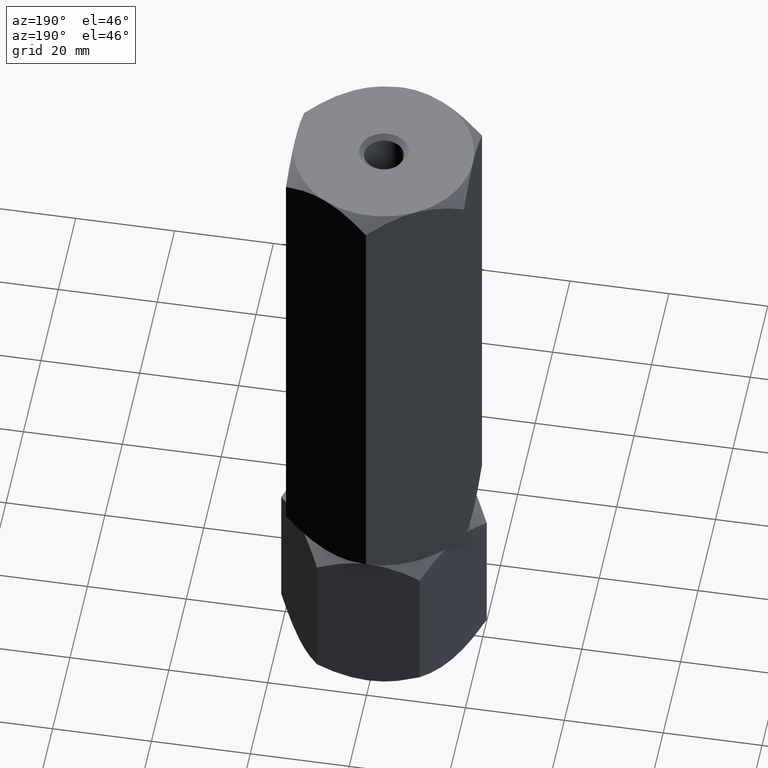
[diagram: clean part render]
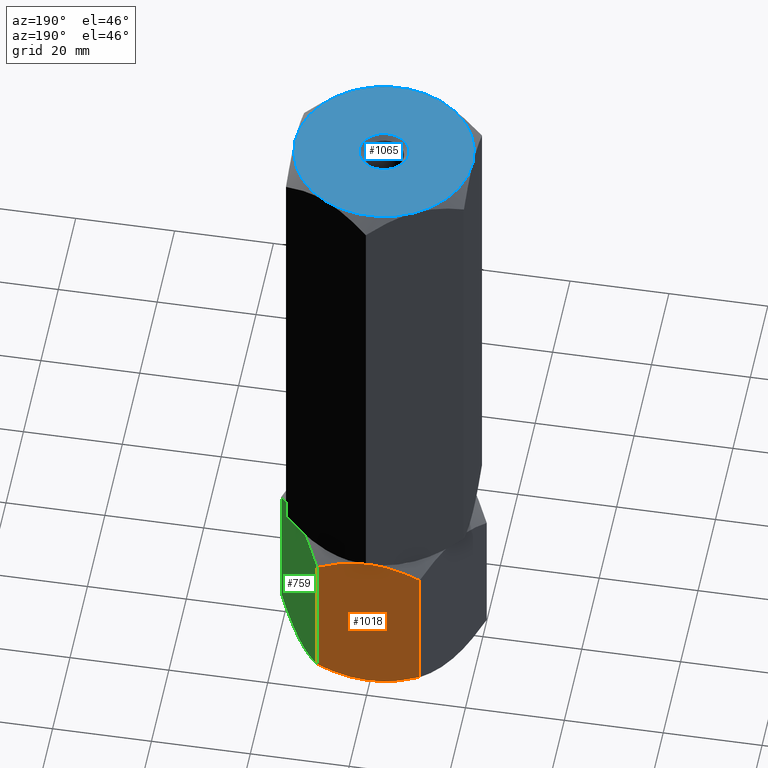
[diagram: same view with three faces highlighted in distinct colors, each labeled with its STEP entity id]
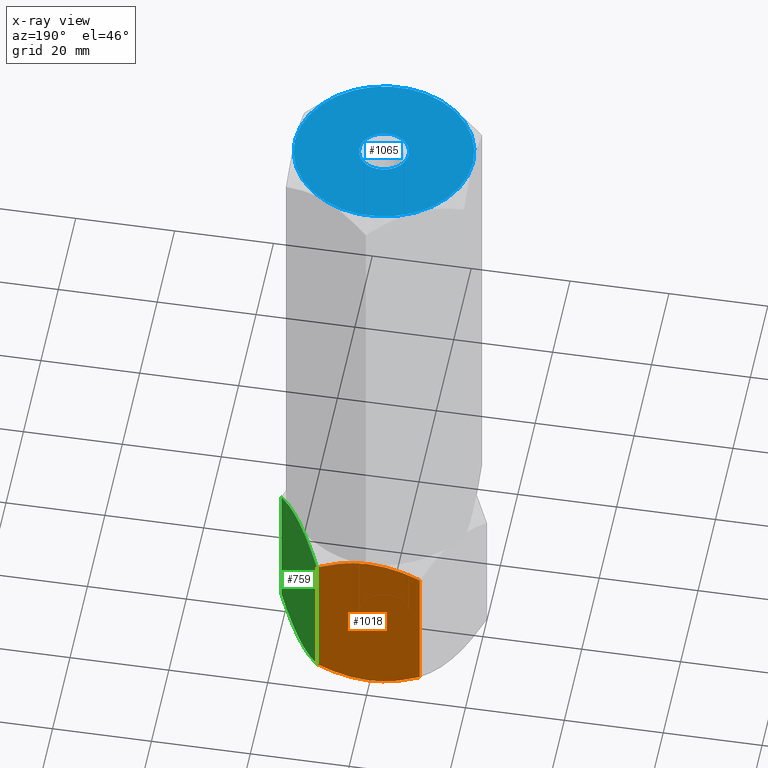
[diagram: x-ray of the same camera — body ghosted, the three highlighted faces saturated]
A machine part, auxiliary view with three faces highlighted in distinct colors.
The next image is the same camera in x-ray (body ghosted, the three faces saturated) — at least one of them is partly hidden behind the body in this view.
Their STEP definitions:

[orange] entity #1018 — the highlighted planar face has unit normal (0, -1, 0).
#123 = CARTESIAN_POINT ( 'NONE',  ( -3.582737890600629527, 18.00000000000000000, 32.98534607053208845 ) ) ;
#152 = CARTESIAN_POINT ( 'NONE',  ( -6.223364658448756970, 18.00000000000000000, 1.027362707364319450 ) ) ;
#158 = EDGE_CURVE ( 'NONE', #1009, #1363, #1862, .T. ) ;
#163 = CARTESIAN_POINT ( 'NONE',  ( 0.000000000000000000, 18.00000000000000000, 0.000000000000000000 ) ) ;
#203 = LINE ( 'NONE', #1028, #266 ) ;
#204 = CARTESIAN_POINT ( 'NONE',  ( 10.39230484541325872, 18.00000000000000000, 30.54872364250678274 ) ) ;
#242 = ORIENTED_EDGE ( 'NONE', *, *, #1623, .T. ) ;
#266 = VECTOR ( 'NONE', #546, 1000.000000000000000 ) ;
#278 = CARTESIAN_POINT ( 'NONE',  ( 0.9002413815126234509, 18.00000000000000355, 33.31647646091370518 ) ) ;
#301 = ORIENTED_EDGE ( 'NONE', *, *, #1191, .F. ) ;
#324 = CARTESIAN_POINT ( 'NONE',  ( 0.000000000000000000, 18.00000000000000000, 33.33333333333330017 ) ) ;
#418 = CARTESIAN_POINT ( 'NONE',  ( 3.137971139320011371, 17.99999999999999289, 0.2661507737096521775 ) ) ;
#431 = CARTESIAN_POINT ( 'NONE',  ( 1.804565745311149216, 17.99999999999999645, 33.24872234649103575 ) ) ;
#441 = CARTESIAN_POINT ( 'NONE',  ( -9.584903723681016174, 18.00000000000000355, 2.380909129960397497 ) ) ;
#464 = CARTESIAN_POINT ( 'NONE',  ( -0.4494445606874136190, 18.00000000000000355, 7.199780051661526689E-18 ) ) ;
#466 = VERTEX_POINT ( 'NONE', #663 ) ;
#546 = DIRECTION ( 'NONE',  ( -0.000000000000000000, -0.000000000000000000, -1.000000000000000000 ) ) ;
#549 = CARTESIAN_POINT ( 'NONE',  ( 10.39230484541325872, 18.00000000000000000, 33.33333333333330017 ) ) ;
#574 = CARTESIAN_POINT ( 'NONE',  ( 7.075106353536198434, 17.99999999999999289, 32.00806985700393170 ) ) ;
#586 = CARTESIAN_POINT ( 'NONE',  ( -3.609079520572075594, 17.99999999999999289, 0.3366946526511033211 ) ) ;
#608 = CARTESIAN_POINT ( 'NONE',  ( 4.469866588357239934, 18.00000000000000711, 0.5416378219639089719 ) ) ;
#612 = CARTESIAN_POINT ( 'NONE',  ( 8.755178905241953302, 18.00000000000000000, 31.33178748861184459 ) ) ;
#620 = CARTESIAN_POINT ( 'NONE',  ( 0.9026633666619912066, 18.00000000000000355, -1.524659305057740610E-17 ) ) ;
#658 = CARTESIAN_POINT ( 'NONE',  ( -10.39230484541326582, 18.00000000000000000, 30.54872364250677919 ) ) ;
#663 = CARTESIAN_POINT ( 'NONE',  ( -10.39230484541326582, 18.00000000000000000, 2.784609690826517436 ) ) ;
#760 = CARTESIAN_POINT ( 'NONE',  ( -1.804565745311151437, 18.00000000000000355, 0.08461098684225840105 ) ) ;
#779 = CARTESIAN_POINT ( 'NONE',  ( 1.799853003699884546, 18.00000000000000000, 0.06823388440832033053 ) ) ;
#792 = CARTESIAN_POINT ( 'NONE',  ( 0.000000000000000000, 18.00000000000000000, 33.33333333333330017 ) ) ;
#795 = EDGE_CURVE ( 'NONE', #964, #1880, #1221, .T. ) ;
#920 = CARTESIAN_POINT ( 'NONE',  ( 2.259904121284829426, 18.00000000000000711, 33.19747394958513098 ) ) ;
#922 = CARTESIAN_POINT ( 'NONE',  ( -1.799853003699874110, 18.00000000000000355, 33.26509944892498538 ) ) ;
#938 = CARTESIAN_POINT ( 'NONE',  ( 3.582737890600643738, 18.00000000000000000, 0.3479872628012178337 ) ) ;
#943 = CARTESIAN_POINT ( 'NONE',  ( 3.609079520572076483, 18.00000000000000355, 32.99663868068220296 ) ) ;
#946 = CARTESIAN_POINT ( 'NONE',  ( -10.39230484541326582, 18.00000000000000000, 2.784609690826517436 ) ) ;
#964 = VERTEX_POINT ( 'NONE', #204 ) ;
#976 = CARTESIAN_POINT ( 'NONE',  ( 10.39230484541325872, 18.00000000000000000, 2.784609690826514328 ) ) ;
#985 = CARTESIAN_POINT ( 'NONE',  ( -8.776755605963906248, 18.00000000000000355, 31.35649826223145453 ) ) ;
#1009 = VERTEX_POINT ( 'NONE', #1256 ) ;
#1018 = ADVANCED_FACE ( 'NONE', ( #1871 ), #2013, .F. ) ;
#1025 = ORIENTED_EDGE ( 'NONE', *, *, #1255, .F. ) ;
#1028 = CARTESIAN_POINT ( 'NONE',  ( -10.39230484541326582, 18.00000000000000000, 33.33333333333330017 ) ) ;
#1060 = CARTESIAN_POINT ( 'NONE',  ( 4.913571642337147161, 18.00000000000000000, 0.6538437536460134369 ) ) ;
#1061 = DIRECTION ( 'NONE',  ( 0.000000000000000000, -0.000000000000000000, -1.000000000000000000 ) ) ;
#1084 = DIRECTION ( 'NONE',  ( 0.000000000000000000, -1.000000000000000000, 0.000000000000000000 ) ) ;
#1091 = CARTESIAN_POINT ( 'NONE',  ( -4.490362039994832521, 18.00000000000000000, 0.5330411745022592962 ) ) ;
#1114 = CARTESIAN_POINT ( 'NONE',  ( -8.755178905241962184, 17.99999999999999645, 2.001545844721461354 ) ) ;
#1191 = EDGE_CURVE ( 'NONE', #466, #1009, #1597, .T. ) ;
#1220 = CARTESIAN_POINT ( 'NONE',  ( 10.39230484541325872, 18.00000000000000000, 30.54872364250678274 ) ) ;
#1221 = B_SPLINE_CURVE_WITH_KNOTS ( 'NONE', 3,
 ( #1220, #2016, #612, #574, #1245, #1426, #943, #920, #431, #278, #1996, #2006 ),
 .UNSPECIFIED., .F., .F.,
 ( 4, 2, 2, 2, 2, 4 ),
 ( 0.05087049060338693501, 0.05355718337380664662, 0.05624387614422635823, 0.05893056891464606983, 0.06027391529985592911, 0.06161726168506578838 ),
 .UNSPECIFIED. ) ;
#1245 = CARTESIAN_POINT ( 'NONE',  ( 6.223364658448745423, 18.00000000000000355, 32.30597062596897473 ) ) ;
#1254 = CARTESIAN_POINT ( 'NONE',  ( 10.39230484541325872, 18.00000000000000000, 2.784609690826514328 ) ) ;
#1255 = EDGE_CURVE ( 'NONE', #1880, #1537, #1524, .T. ) ;
#1256 = CARTESIAN_POINT ( 'NONE',  ( 0.000000000000000000, 18.00000000000000000, 0.000000000000000000 ) ) ;
#1289 = CARTESIAN_POINT ( 'NONE',  ( -2.259904121284828538, 18.00000000000000000, 0.1358593837481692213 ) ) ;
#1363 = VERTEX_POINT ( 'NONE', #976 ) ;
#1394 = CARTESIAN_POINT ( 'NONE',  ( 10.39230484541325872, 18.00000000000000000, 33.33333333333330017 ) ) ;
#1407 = VECTOR ( 'NONE', #1978, 1000.000000000000000 ) ;
#1409 = CARTESIAN_POINT ( 'NONE',  ( -4.469866588357223058, 18.00000000000000355, 32.79169551136941152 ) ) ;
#1411 = ORIENTED_EDGE ( 'NONE', *, *, #158, .F. ) ;
#1420 = ORIENTED_EDGE ( 'NONE', *, *, #2034, .F. ) ;
#1426 = CARTESIAN_POINT ( 'NONE',  ( 4.490362039994821863, 18.00000000000000355, 32.80029215883104143 ) ) ;
#1501 = AXIS2_PLACEMENT_3D ( 'NONE', #1394, #1084, #1061 ) ;
#1524 = B_SPLINE_CURVE_WITH_KNOTS ( 'NONE', 3,
 ( #792, #1868, #922, #1560, #123, #1409, #2021, #2032, #985, #1613 ),
 .UNSPECIFIED., .F., .F.,
 ( 4, 2, 2, 2, 4 ),
 ( 0.06161726168506578838, 0.06431523531013785822, 0.06566422212267389313, 0.06701320893520992805, 0.07240915618535409548 ),
 .UNSPECIFIED. ) ;
#1537 = VERTEX_POINT ( 'NONE', #658 ) ;
#1553 = CARTESIAN_POINT ( 'NONE',  ( 8.776755605963906248, 17.99999999999999645, 1.976835071101844088 ) ) ;
#1560 = CARTESIAN_POINT ( 'NONE',  ( -3.137971139319999381, 18.00000000000000000, 33.06718255962364594 ) ) ;
#1563 = ORIENTED_EDGE ( 'NONE', *, *, #795, .F. ) ;
#1597 = B_SPLINE_CURVE_WITH_KNOTS ( 'NONE', 3,
 ( #946, #441, #1114, #1751, #152, #1091, #586, #1289, #760, #1893, #464, #163 ),
 .UNSPECIFIED., .F., .F.,
 ( 4, 2, 2, 2, 2, 4 ),
 ( 0.05087049060338693501, 0.05355718337380665356, 0.05624387614422636517, 0.05893056891464608371, 0.06027391529985593605, 0.06161726168506579532 ),
 .UNSPECIFIED. ) ;
#1613 = CARTESIAN_POINT ( 'NONE',  ( -10.39230484541326582, 18.00000000000000000, 30.54872364250677919 ) ) ;
#1623 = EDGE_CURVE ( 'NONE', #964, #1363, #1828, .T. ) ;
#1751 = CARTESIAN_POINT ( 'NONE',  ( -7.075106353536209980, 18.00000000000000000, 1.325263476329348267 ) ) ;
#1828 = LINE ( 'NONE', #549, #1407 ) ;
#1841 = CARTESIAN_POINT ( 'NONE',  ( 0.000000000000000000, 18.00000000000000000, 0.000000000000000000 ) ) ;
#1862 = B_SPLINE_CURVE_WITH_KNOTS ( 'NONE', 3,
 ( #1841, #620, #779, #418, #938, #608, #1060, #2037, #1553, #1254 ),
 .UNSPECIFIED., .F., .F.,
 ( 4, 2, 2, 2, 4 ),
 ( 0.06161726168506579532, 0.06431523531013787209, 0.06566422212267390701, 0.06701320893520994193, 0.07240915618535409548 ),
 .UNSPECIFIED. ) ;
#1868 = CARTESIAN_POINT ( 'NONE',  ( -0.9026633666619896523, 18.00000000000000711, 33.33333333333330728 ) ) ;
#1871 = FACE_OUTER_BOUND ( 'NONE', #2010, .T. ) ;
#1880 = VERTEX_POINT ( 'NONE', #324 ) ;
#1893 = CARTESIAN_POINT ( 'NONE',  ( -0.9002413815126235619, 18.00000000000000000, 0.01685687241959241828 ) ) ;
#1978 = DIRECTION ( 'NONE',  ( -0.000000000000000000, -0.000000000000000000, -1.000000000000000000 ) ) ;
#1996 = CARTESIAN_POINT ( 'NONE',  ( 0.4494445606874132304, 18.00000000000000000, 33.33333333333330017 ) ) ;
#2006 = CARTESIAN_POINT ( 'NONE',  ( 0.000000000000000000, 18.00000000000000000, 33.33333333333330017 ) ) ;
#2010 = EDGE_LOOP ( 'NONE', ( #1563, #242, #1411, #301, #1420, #1025 ) ) ;
#2013 = PLANE ( 'NONE',  #1501 ) ;
#2016 = CARTESIAN_POINT ( 'NONE',  ( 9.584903723681012622, 18.00000000000000000, 30.95242420337290312 ) ) ;
#2021 = CARTESIAN_POINT ( 'NONE',  ( -4.913571642337144496, 18.00000000000000355, 32.67948957968728507 ) ) ;
#2032 = CARTESIAN_POINT ( 'NONE',  ( -7.110040999954855501, 17.99999999999999645, 32.05339839988549500 ) ) ;
#2034 = EDGE_CURVE ( 'NONE', #1537, #466, #203, .T. ) ;
#2037 = CARTESIAN_POINT ( 'NONE',  ( 7.110040999954858165, 18.00000000000000711, 1.279934933447799628 ) ) ;

[blue] entity #1065 — the highlighted planar face has unit normal (0, 0, 1).
#22 = DIRECTION ( 'NONE',  ( 1.000000000000000000, 0.000000000000000000, 0.000000000000000000 ) ) ;
#32 = CIRCLE ( 'NONE', #801, 18.00000000000000000 ) ;
#80 = ORIENTED_EDGE ( 'NONE', *, *, #1771, .T. ) ;
#107 = CARTESIAN_POINT ( 'NONE',  ( 8.999999999999994671, -15.58845726811989785, 133.3333333333333144 ) ) ;
#114 = CARTESIAN_POINT ( 'NONE',  ( 0.000000000000000000, 0.000000000000000000, 133.3333333333333144 ) ) ;
#133 = ORIENTED_EDGE ( 'NONE', *, *, #1856, .T. ) ;
#148 = DIRECTION ( 'NONE',  ( 1.000000000000000000, 0.000000000000000000, -0.000000000000000000 ) ) ;
#162 = VERTEX_POINT ( 'NONE', #445 ) ;
#188 = CIRCLE ( 'NONE', #263, 4.999999999999990230 ) ;
#224 = DIRECTION ( 'NONE',  ( 1.000000000000000000, 0.000000000000000000, 0.000000000000000000 ) ) ;
#239 = CARTESIAN_POINT ( 'NONE',  ( 4.999999999999990230, 0.000000000000000000, 133.3333333333333144 ) ) ;
#246 = CARTESIAN_POINT ( 'NONE',  ( 18.00000000000000000, 3.004629197474316879E-15, 133.3333333333333144 ) ) ;
#263 = AXIS2_PLACEMENT_3D ( 'NONE', #1062, #1863, #265 ) ;
#265 = DIRECTION ( 'NONE',  ( 1.000000000000000000, 0.000000000000000000, 0.000000000000000000 ) ) ;
#275 = EDGE_CURVE ( 'NONE', #600, #649, #1700, .T. ) ;
#372 = CARTESIAN_POINT ( 'NONE',  ( 0.000000000000000000, 0.000000000000000000, 133.3333333333333144 ) ) ;
#395 = CARTESIAN_POINT ( 'NONE',  ( 0.000000000000000000, 0.000000000000000000, 133.3333333333333144 ) ) ;
#445 = CARTESIAN_POINT ( 'NONE',  ( -9.000000000000003553, -15.58845726811989074, 133.3333333333333144 ) ) ;
#461 = AXIS2_PLACEMENT_3D ( 'NONE', #1202, #1039, #902 ) ;
#526 = CIRCLE ( 'NONE', #461, 18.00000000000000000 ) ;
#554 = CIRCLE ( 'NONE', #1671, 4.999999999999990230 ) ;
#577 = EDGE_LOOP ( 'NONE', ( #1721, #1942, #1901, #1213, #1561, #1346 ) ) ;
#581 = CARTESIAN_POINT ( 'NONE',  ( 9.000000000000000000, 15.58845726811989252, 133.3333333333333144 ) ) ;
#584 = EDGE_CURVE ( 'NONE', #847, #162, #907, .T. ) ;
#600 = VERTEX_POINT ( 'NONE', #107 ) ;
#649 = VERTEX_POINT ( 'NONE', #246 ) ;
#651 = CARTESIAN_POINT ( 'NONE',  ( -4.999999999999990230, 6.123233995736754449E-16, 133.3333333333333144 ) ) ;
#655 = FACE_BOUND ( 'NONE', #851, .T. ) ;
#660 = EDGE_CURVE ( 'NONE', #997, #925, #526, .T. ) ;
#801 = AXIS2_PLACEMENT_3D ( 'NONE', #372, #878, #1502 ) ;
#818 = DIRECTION ( 'NONE',  ( 0.000000000000000000, 0.000000000000000000, 1.000000000000000000 ) ) ;
#847 = VERTEX_POINT ( 'NONE', #1100 ) ;
#851 = EDGE_LOOP ( 'NONE', ( #133, #80 ) ) ;
#878 = DIRECTION ( 'NONE',  ( 0.000000000000000000, 0.000000000000000000, 1.000000000000000000 ) ) ;
#902 = DIRECTION ( 'NONE',  ( 1.000000000000000000, 0.000000000000000000, 0.000000000000000000 ) ) ;
#907 = CIRCLE ( 'NONE', #1134, 18.00000000000000000 ) ;
#925 = VERTEX_POINT ( 'NONE', #1030 ) ;
#950 = CARTESIAN_POINT ( 'NONE',  ( 0.000000000000000000, 0.000000000000000000, 133.3333333333333144 ) ) ;
#968 = DIRECTION ( 'NONE',  ( 0.000000000000000000, 0.000000000000000000, 1.000000000000000000 ) ) ;
#997 = VERTEX_POINT ( 'NONE', #581 ) ;
#1010 = DIRECTION ( 'NONE',  ( 0.000000000000000000, 0.000000000000000000, 1.000000000000000000 ) ) ;
#1030 = CARTESIAN_POINT ( 'NONE',  ( -8.999999999999998224, 15.58845726811990318, 133.3333333333333144 ) ) ;
#1039 = DIRECTION ( 'NONE',  ( 0.000000000000000000, 0.000000000000000000, 1.000000000000000000 ) ) ;
#1062 = CARTESIAN_POINT ( 'NONE',  ( 0.000000000000000000, 0.000000000000000000, 133.3333333333333144 ) ) ;
#1065 = ADVANCED_FACE ( 'NONE', ( #655, #1499 ), #1129, .T. ) ;
#1094 = CIRCLE ( 'NONE', #1699, 18.00000000000000000 ) ;
#1100 = CARTESIAN_POINT ( 'NONE',  ( -18.00000000000000000, 0.000000000000000000, 133.3333333333333144 ) ) ;
#1109 = DIRECTION ( 'NONE',  ( 1.000000000000000000, 0.000000000000000000, 0.000000000000000000 ) ) ;
#1128 = AXIS2_PLACEMENT_3D ( 'NONE', #395, #1010, #224 ) ;
#1129 = PLANE ( 'NONE',  #1540 ) ;
#1134 = AXIS2_PLACEMENT_3D ( 'NONE', #1616, #818, #22 ) ;
#1137 = DIRECTION ( 'NONE',  ( 0.000000000000000000, 0.000000000000000000, 1.000000000000000000 ) ) ;
#1151 = DIRECTION ( 'NONE',  ( -0.000000000000000000, -0.000000000000000000, -1.000000000000000000 ) ) ;
#1202 = CARTESIAN_POINT ( 'NONE',  ( 0.000000000000000000, 0.000000000000000000, 133.3333333333333144 ) ) ;
#1213 = ORIENTED_EDGE ( 'NONE', *, *, #1284, .T. ) ;
#1266 = VERTEX_POINT ( 'NONE', #651 ) ;
#1276 = CIRCLE ( 'NONE', #1405, 18.00000000000000000 ) ;
#1284 = EDGE_CURVE ( 'NONE', #925, #847, #1276, .T. ) ;
#1346 = ORIENTED_EDGE ( 'NONE', *, *, #1970, .T. ) ;
#1405 = AXIS2_PLACEMENT_3D ( 'NONE', #1624, #1137, #1774 ) ;
#1449 = EDGE_CURVE ( 'NONE', #649, #997, #1094, .T. ) ;
#1499 = FACE_OUTER_BOUND ( 'NONE', #577, .T. ) ;
#1502 = DIRECTION ( 'NONE',  ( 1.000000000000000000, 0.000000000000000000, 0.000000000000000000 ) ) ;
#1540 = AXIS2_PLACEMENT_3D ( 'NONE', #950, #968, #148 ) ;
#1561 = ORIENTED_EDGE ( 'NONE', *, *, #584, .T. ) ;
#1616 = CARTESIAN_POINT ( 'NONE',  ( 0.000000000000000000, 0.000000000000000000, 133.3333333333333144 ) ) ;
#1624 = CARTESIAN_POINT ( 'NONE',  ( 0.000000000000000000, 0.000000000000000000, 133.3333333333333144 ) ) ;
#1671 = AXIS2_PLACEMENT_3D ( 'NONE', #1754, #1151, #1109 ) ;
#1699 = AXIS2_PLACEMENT_3D ( 'NONE', #114, #2028, #1718 ) ;
#1700 = CIRCLE ( 'NONE', #1128, 18.00000000000000000 ) ;
#1718 = DIRECTION ( 'NONE',  ( 1.000000000000000000, 0.000000000000000000, 0.000000000000000000 ) ) ;
#1721 = ORIENTED_EDGE ( 'NONE', *, *, #275, .T. ) ;
#1754 = CARTESIAN_POINT ( 'NONE',  ( 0.000000000000000000, 0.000000000000000000, 133.3333333333333144 ) ) ;
#1771 = EDGE_CURVE ( 'NONE', #1266, #1956, #188, .T. ) ;
#1774 = DIRECTION ( 'NONE',  ( 1.000000000000000000, 0.000000000000000000, 0.000000000000000000 ) ) ;
#1856 = EDGE_CURVE ( 'NONE', #1956, #1266, #554, .T. ) ;
#1863 = DIRECTION ( 'NONE',  ( -0.000000000000000000, -0.000000000000000000, -1.000000000000000000 ) ) ;
#1901 = ORIENTED_EDGE ( 'NONE', *, *, #660, .T. ) ;
#1942 = ORIENTED_EDGE ( 'NONE', *, *, #1449, .T. ) ;
#1956 = VERTEX_POINT ( 'NONE', #239 ) ;
#1970 = EDGE_CURVE ( 'NONE', #162, #600, #32, .T. ) ;
#2028 = DIRECTION ( 'NONE',  ( 0.000000000000000000, 0.000000000000000000, 1.000000000000000000 ) ) ;

[green] entity #759 — the highlighted planar face has unit normal (-0.866, -0.5, 0).
#18 = CARTESIAN_POINT ( 'NONE',  ( 12.04041001437222214, 15.14539811114618928, 1.277383077889868046 ) ) ;
#41 = CARTESIAN_POINT ( 'NONE',  ( 15.13208409062669091, 9.790461530629878339, 0.01733285647408732560 ) ) ;
#96 = ORIENTED_EDGE ( 'NONE', *, *, #2008, .T. ) ;
#131 = CARTESIAN_POINT ( 'NONE',  ( 15.58845726811989252, 9.000000000000003553, 33.33333333333330017 ) ) ;
#194 = CARTESIAN_POINT ( 'NONE',  ( 15.58845726811989252, 9.000000000000003553, 33.33333333333330017 ) ) ;
#201 = VERTEX_POINT ( 'NONE', #194 ) ;
#204 = CARTESIAN_POINT ( 'NONE',  ( 10.39230484541325872, 18.00000000000000000, 30.54872364250678274 ) ) ;
#207 = DIRECTION ( 'NONE',  ( -0.8660254037844385966, -0.5000000000000003331, 0.000000000000000000 ) ) ;
#287 = CARTESIAN_POINT ( 'NONE',  ( 13.79618737047369947, 12.10430252359948256, 33.05693742621171083 ) ) ;
#312 = ORIENTED_EDGE ( 'NONE', *, *, #1446, .F. ) ;
#354 = CARTESIAN_POINT ( 'NONE',  ( 14.67378923359657605, 10.58425150785354774, 0.08694689011815222301 ) ) ;
#364 = PLANE ( 'NONE',  #736 ) ;
#374 = CARTESIAN_POINT ( 'NONE',  ( 20.78460969082652809, 2.339913672068599110E-16, 30.54872364250677919 ) ) ;
#402 = CARTESIAN_POINT ( 'NONE',  ( 20.78460969082652809, 0.000000000000000000, 33.33333333333330017 ) ) ;
#437 = CARTESIAN_POINT ( 'NONE',  ( 19.96977770663490048, 1.411330396252048258, 31.36355562669839614 ) ) ;
#456 = CARTESIAN_POINT ( 'NONE',  ( 15.58845726811989252, 9.000000000000003553, 33.33333333333330017 ) ) ;
#507 = CARTESIAN_POINT ( 'NONE',  ( 10.39230484541325872, 18.00000000000000000, 2.784609690826514328 ) ) ;
#538 = DIRECTION ( 'NONE',  ( -0.000000000000000000, -0.000000000000000000, -1.000000000000000000 ) ) ;
#549 = CARTESIAN_POINT ( 'NONE',  ( 10.39230484541325872, 18.00000000000000000, 33.33333333333330017 ) ) ;
#587 = VERTEX_POINT ( 'NONE', #1309 ) ;
#716 = CARTESIAN_POINT ( 'NONE',  ( 15.58845726811989252, 9.000000000000003553, 0.000000000000000000 ) ) ;
#718 = VERTEX_POINT ( 'NONE', #1090 ) ;
#736 = AXIS2_PLACEMENT_3D ( 'NONE', #402, #207, #900 ) ;
#756 = CARTESIAN_POINT ( 'NONE',  ( 19.13650452186755757, 2.854601888853812497, 32.05595025544343457 ) ) ;
#759 = ADVANCED_FACE ( 'NONE', ( #1838 ), #364, .F. ) ;
#841 = B_SPLINE_CURVE_WITH_KNOTS ( 'NONE', 3,
 ( #507, #1118, #18, #1456, #1789, #1448, #354, #41, #1000, #1485 ),
 .UNSPECIFIED., .F., .F.,
 ( 4, 2, 2, 2, 4 ),
 ( 2.544307986804616605E-07, 0.005386537354063074268, 0.008079678815695271604, 0.009426249546511368538, 0.01077282027732746547 ),
 .UNSPECIFIED. ) ;
#864 = CARTESIAN_POINT ( 'NONE',  ( 19.13297464765287614, 2.860715810337965070, 1.272574701504243233 ) ) ;
#900 = DIRECTION ( 'NONE',  ( 0.5000000000000002220, -0.8660254037844384856, 0.000000000000000000 ) ) ;
#912 = CARTESIAN_POINT ( 'NONE',  ( 14.68463803553234470, 10.56546083169953754, 33.33333333333330017 ) ) ;
#919 = CARTESIAN_POINT ( 'NONE',  ( 16.72971695024923733, 7.023280245922047804, 33.19461073423471476 ) ) ;
#944 = EDGE_CURVE ( 'NONE', #587, #1770, #1852, .T. ) ;
#964 = VERTEX_POINT ( 'NONE', #204 ) ;
#976 = CARTESIAN_POINT ( 'NONE',  ( 10.39230484541325872, 18.00000000000000000, 2.784609690826514328 ) ) ;
#1000 = CARTESIAN_POINT ( 'NONE',  ( 15.36090870263096519, 9.394125676616235765, 7.538593230563273018E-17 ) ) ;
#1043 = CARTESIAN_POINT ( 'NONE',  ( 20.78460969082652809, 0.000000000000000000, 33.33333333333330017 ) ) ;
#1090 = CARTESIAN_POINT ( 'NONE',  ( 20.78460969082652809, 2.339913672068599110E-16, 30.54872364250677919 ) ) ;
#1118 = CARTESIAN_POINT ( 'NONE',  ( 11.20713682960488100, 16.58866960374795951, 1.969777706634898484 ) ) ;
#1131 = VECTOR ( 'NONE', #538, 1000.000000000000000 ) ;
#1150 = ORIENTED_EDGE ( 'NONE', *, *, #944, .F. ) ;
#1218 = CARTESIAN_POINT ( 'NONE',  ( 15.81600583360881807, 8.605874323383773117, 33.33333333333331439 ) ) ;
#1269 = CARTESIAN_POINT ( 'NONE',  ( 17.40248616759157585, 5.858009779716803145, 32.99277023107802620 ) ) ;
#1309 = CARTESIAN_POINT ( 'NONE',  ( 15.58845726811989252, 9.000000000000003553, 0.000000000000000000 ) ) ;
#1363 = VERTEX_POINT ( 'NONE', #976 ) ;
#1367 = CARTESIAN_POINT ( 'NONE',  ( 20.78460969082652809, -4.404509159444062513E-16, 2.784609690826518769 ) ) ;
#1369 = EDGE_LOOP ( 'NONE', ( #1898, #96, #1150, #2029, #1715, #312 ) ) ;
#1404 = CARTESIAN_POINT ( 'NONE',  ( 10.39230484541325872, 18.00000000000000000, 30.54872364250678274 ) ) ;
#1407 = VECTOR ( 'NONE', #1978, 1000.000000000000000 ) ;
#1417 = CARTESIAN_POINT ( 'NONE',  ( 17.84166640377631197, 5.097327296964722976, 32.79624777750427000 ) ) ;
#1446 = EDGE_CURVE ( 'NONE', #201, #964, #2047, .T. ) ;
#1448 = CARTESIAN_POINT ( 'NONE',  ( 14.44719758599053350, 10.97671975407795486, 0.1387225990985758162 ) ) ;
#1456 = CARTESIAN_POINT ( 'NONE',  ( 13.33524813246346596, 12.90267270303527880, 0.5370855558290084097 ) ) ;
#1484 = CARTESIAN_POINT ( 'NONE',  ( 17.38072716576608556, 5.895697476400523662, 0.2763959071215847385 ) ) ;
#1485 = CARTESIAN_POINT ( 'NONE',  ( 15.58845726811989252, 9.000000000000003553, 0.000000000000000000 ) ) ;
#1517 = CARTESIAN_POINT ( 'NONE',  ( 19.97072132548310108, 1.409696000463987353, 1.970721325483051123 ) ) ;
#1536 = EDGE_CURVE ( 'NONE', #1363, #587, #841, .T. ) ;
#1550 = CARTESIAN_POINT ( 'NONE',  ( 12.04393988858690001, 15.13928418966203360, 32.06075863182906005 ) ) ;
#1623 = EDGE_CURVE ( 'NONE', #964, #1363, #1828, .T. ) ;
#1652 = CARTESIAN_POINT ( 'NONE',  ( 16.49227650070743678, 7.434539168300463352, -2.134523027080836115E-16 ) ) ;
#1664 = B_SPLINE_CURVE_WITH_KNOTS ( 'NONE', 3,
 ( #374, #437, #756, #1417, #1269, #919, #1885, #2004, #1218, #456 ),
 .UNSPECIFIED., .F., .F.,
 ( 4, 2, 2, 2, 4 ),
 ( 2.544307986817553445E-07, 0.005386537354063076002, 0.008079678815695273339, 0.009426249546511373742, 0.01077282027732747588 ),
 .UNSPECIFIED. ) ;
#1679 = LINE ( 'NONE', #1043, #1131 ) ;
#1683 = EDGE_CURVE ( 'NONE', #718, #201, #1664, .T. ) ;
#1715 = ORIENTED_EDGE ( 'NONE', *, *, #1623, .F. ) ;
#1770 = VERTEX_POINT ( 'NONE', #2050 ) ;
#1789 = CARTESIAN_POINT ( 'NONE',  ( 13.77442836864821274, 12.14199022028320130, 0.3405631022552679243 ) ) ;
#1828 = LINE ( 'NONE', #549, #1407 ) ;
#1838 = FACE_OUTER_BOUND ( 'NONE', #1369, .T. ) ;
#1852 = B_SPLINE_CURVE_WITH_KNOTS ( 'NONE', 3,
 ( #716, #1652, #1484, #864, #1517, #1367 ),
 .UNSPECIFIED., .F., .F.,
 ( 4, 2, 4 ),
 ( 0.01077282027732746547, 0.01612137750481873466, 0.02146993473231000038 ),
 .UNSPECIFIED. ) ;
#1865 = CARTESIAN_POINT ( 'NONE',  ( 11.20619321075668040, 16.59030399953601531, 31.36261200785025238 ) ) ;
#1885 = CARTESIAN_POINT ( 'NONE',  ( 16.50312530264320188, 7.415748492146455817, 33.24638644321513681 ) ) ;
#1898 = ORIENTED_EDGE ( 'NONE', *, *, #1683, .F. ) ;
#1978 = DIRECTION ( 'NONE',  ( -0.000000000000000000, -0.000000000000000000, -1.000000000000000000 ) ) ;
#2004 = CARTESIAN_POINT ( 'NONE',  ( 16.04483044561309057, 8.209538469370126990, 33.31600047685920885 ) ) ;
#2008 = EDGE_CURVE ( 'NONE', #718, #1770, #1679, .T. ) ;
#2029 = ORIENTED_EDGE ( 'NONE', *, *, #1536, .F. ) ;
#2047 = B_SPLINE_CURVE_WITH_KNOTS ( 'NONE', 3,
 ( #131, #912, #287, #1550, #1865, #1404 ),
 .UNSPECIFIED., .F., .F.,
 ( 4, 2, 4 ),
 ( 0.01077282027732747588, 0.01612137750481873813, 0.02146993473231000038 ),
 .UNSPECIFIED. ) ;
#2050 = CARTESIAN_POINT ( 'NONE',  ( 20.78460969082652809, -4.404509159444062513E-16, 2.784609690826518769 ) ) ;